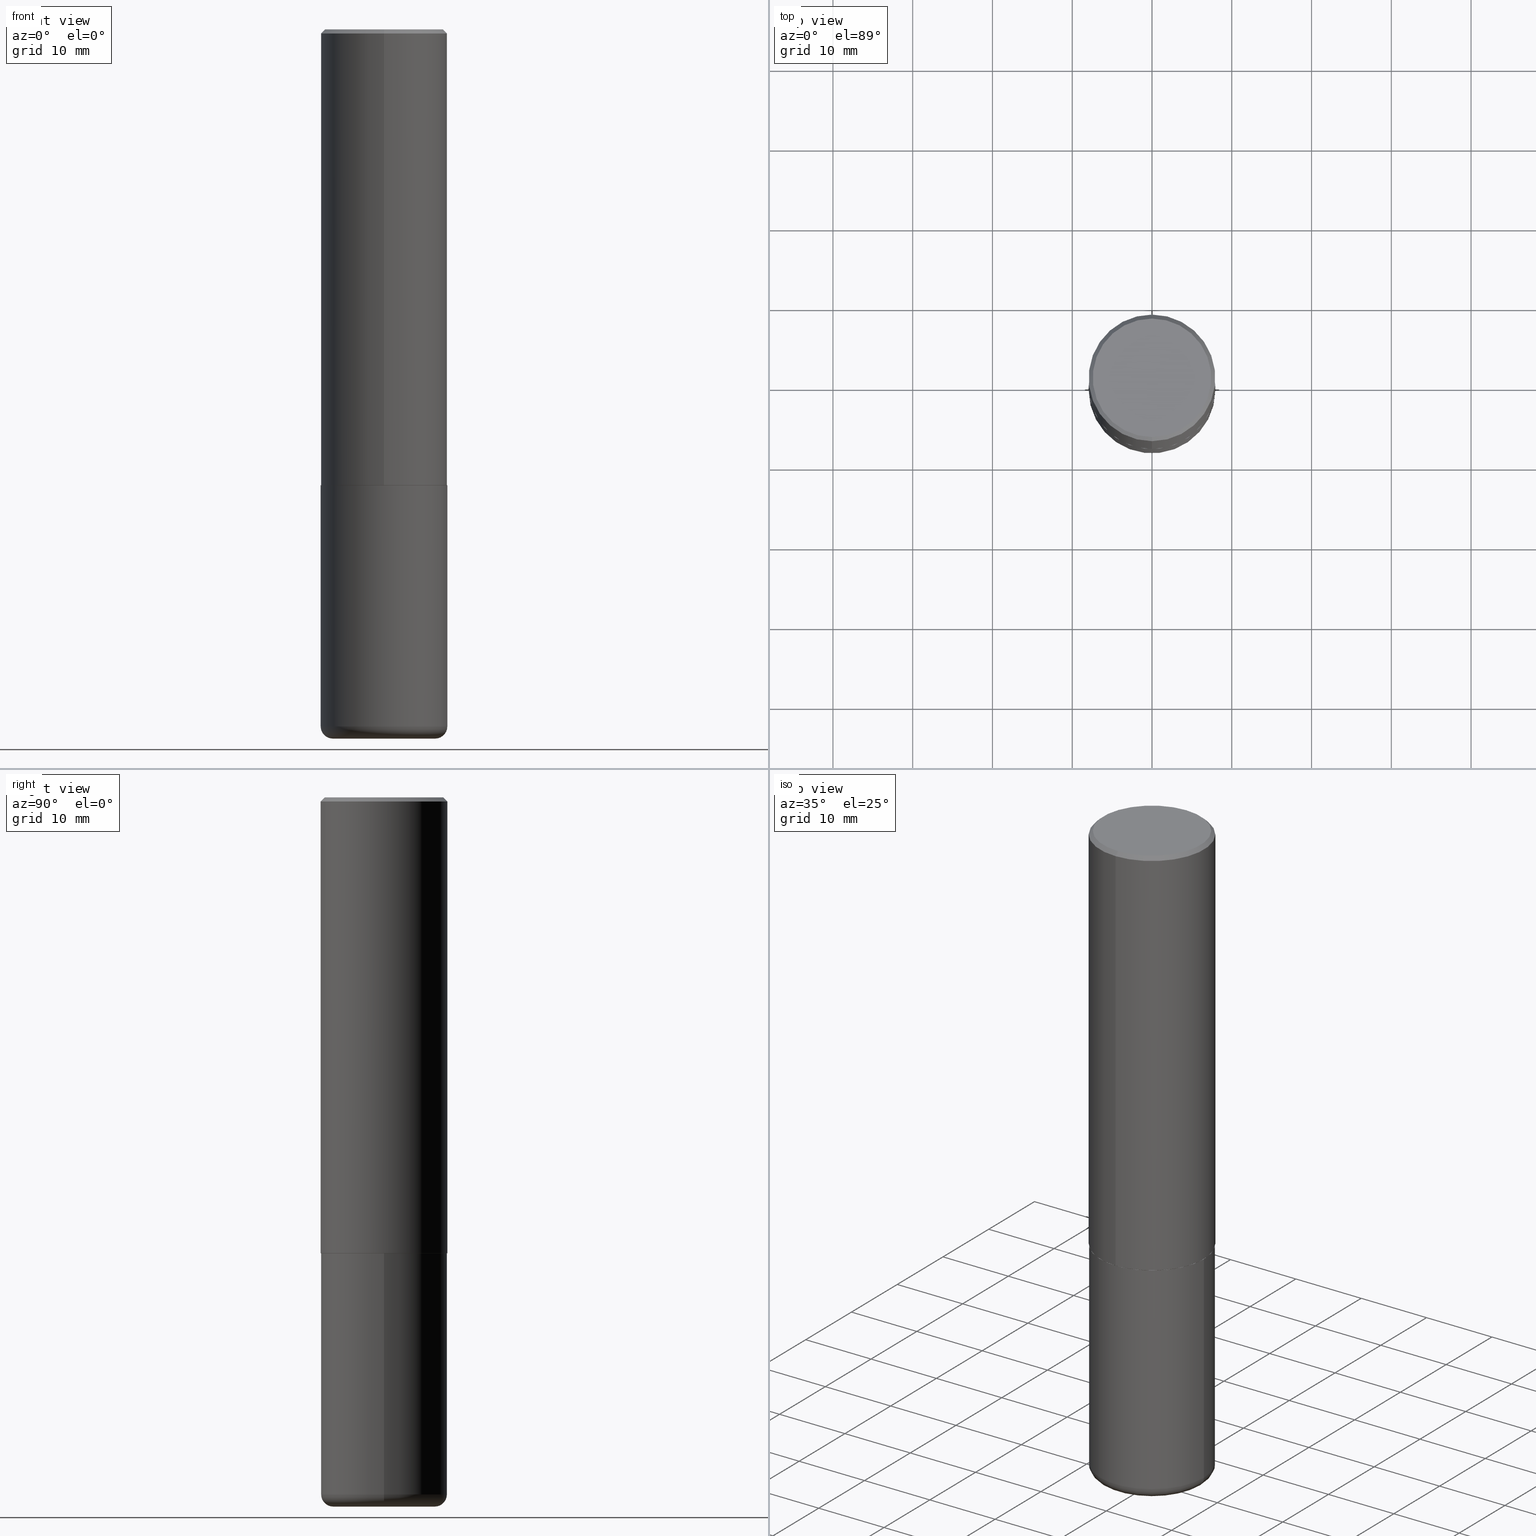
[diagram: canonical four-view strip — front | top / right | iso, engineering-drawing reading convention]
A machine part, canonical four-view strip (front | top / right | iso — engineering-drawing reading convention). The complete STEP part file that produces these views, byte-faithful:
ISO-10303-21;
HEADER;
FILE_DESCRIPTION (( 'STEP AP203' ),
    '1' );
FILE_NAME ('37205.STEP',
    '2024-03-01T21:53:56',
    ( '' ),
    ( '' ),
    'SwSTEP 2.0',
    'SolidWorks 2023',
    '' );
FILE_SCHEMA (( 'CONFIG_CONTROL_DESIGN' ));
ENDSEC;

DATA;
#1 = ORIENTED_EDGE ( 'NONE', *, *, #189, .F. ) ;
#2 = CALENDAR_DATE ( 2024, 1, 3 ) ;
#3 = AXIS2_PLACEMENT_3D ( 'NONE', #195, #126, #198 ) ;
#4 = ORIENTED_EDGE ( 'NONE', *, *, #58, .F. ) ;
#5 = VERTEX_POINT ( 'NONE', #163 ) ;
#6 = ORIENTED_EDGE ( 'NONE', *, *, #63, .F. ) ;
#7 = VERTEX_POINT ( 'NONE', #298 ) ;
#8 = PRODUCT_DEFINITION_FORMATION_WITH_SPECIFIED_SOURCE ( 'ANY', '', #170, .NOT_KNOWN. ) ;
#9 = CYLINDRICAL_SURFACE ( 'NONE', #76, 0.3125000000000000555 ) ;
#10 = EDGE_CURVE ( 'NONE', #7, #213, #218, .T. ) ;
#11 = ORIENTED_EDGE ( 'NONE', *, *, #311, .F. ) ;
#12 = CLOSED_SHELL ( 'NONE', ( #124, #322, #389, #284, #14, #96, #156, #172 ) ) ;
#13 = VECTOR ( 'NONE', #289, 39.37007874015748143 ) ;
#14 = ADVANCED_FACE ( 'NONE', ( #72 ), #178, .T. ) ;
#15 = FACE_OUTER_BOUND ( 'NONE', #177, .T. ) ;
#16 = CYLINDRICAL_SURFACE ( 'NONE', #153, 0.3125000000000000000 ) ;
#17 = DIRECTION ( 'NONE',  ( 1.000000000000000000, -6.982962677686266711E-15, 4.876176775795936353E-29 ) ) ;
#18 = SECURITY_CLASSIFICATION ( '', '', #30 ) ;
#19 = CARTESIAN_POINT ( 'NONE',  ( 0.3125000000000000000, -1.003800884917403522E-14, -2.249999999999999556 ) ) ;
#20 = CARTESIAN_POINT ( 'NONE',  ( 4.888310870337248995E-31, -6.986724321782500903E-17, -0.02000000000000006981 ) ) ;
#21 = CARTESIAN_POINT ( 'NONE',  ( 2.216893335571567797E-15, 0.3114999999999921720, -2.250000000000000888 ) ) ;
#22 = ORIENTED_EDGE ( 'NONE', *, *, #147, .F. ) ;
#23 = DIRECTION ( 'NONE',  ( -6.982962677686265922E-15, -1.000000000000000000, 3.507991003100177457E-15 ) ) ;
#24 = VERTEX_POINT ( 'NONE', #336 ) ;
#25 = DIRECTION ( 'NONE',  ( -2.445468806185136597E-29, 3.491481338843145583E-15, 1.000000000000000000 ) ) ;
#26 = DIRECTION ( 'NONE',  ( 1.000000000000000000, -6.982962677686269077E-15, 0.000000000000000000 ) ) ;
#27 = AXIS2_PLACEMENT_3D ( 'NONE', #321, #259, #23 ) ;
#28 = FACE_OUTER_BOUND ( 'NONE', #246, .T. ) ;
#29 = ORIENTED_EDGE ( 'NONE', *, *, #182, .T. ) ;
#30 = SECURITY_CLASSIFICATION_LEVEL ( 'unclassified' ) ;
#31 =( NAMED_UNIT ( * ) SI_UNIT ( $, .STERADIAN. ) SOLID_ANGLE_UNIT ( ) );
#32 = ORIENTED_EDGE ( 'NONE', *, *, #93, .T. ) ;
#33 = CIRCLE ( 'NONE', #313, 0.2924999999999997047 ) ;
#34 = DATE_AND_TIME ( #387, #345 ) ;
#35 = AXIS2_PLACEMENT_3D ( 'NONE', #297, #262, #26 ) ;
#36 = APPROVAL_ROLE ( '' ) ;
#37 = COORDINATED_UNIVERSAL_TIME_OFFSET ( 5, 0, .BEHIND. ) ;
#38 = ORIENTED_EDGE ( 'NONE', *, *, #93, .F. ) ;
#39 = DATE_AND_TIME ( #2, #48 ) ;
#40 = CARTESIAN_POINT ( 'NONE',  ( 8.559140821647976968E-29, -1.222018468595100934E-14, -3.500000000000000000 ) ) ;
#41 = ORIENTED_EDGE ( 'NONE', *, *, #248, .F. ) ;
#42 = CARTESIAN_POINT ( 'NONE',  ( 0.000000000000000000, 0.000000000000000000, 0.000000000000000000 ) ) ;
#43 = CARTESIAN_POINT ( 'NONE',  ( 8.559140821647976968E-29, -1.222018468595100934E-14, -3.500000000000000000 ) ) ;
#44 = APPROVAL_PERSON_ORGANIZATION ( #347, #358, #94 ) ;
#45 = DATE_AND_TIME ( #368, #240 ) ;
#46 = ORIENTED_EDGE ( 'NONE', *, *, #140, .F. ) ;
#47 = EDGE_CURVE ( 'NONE', #160, #142, #33, .T. ) ;
#48 = LOCAL_TIME ( 16, 53, 56.00000000000000000, #112 ) ;
#49 = DIRECTION ( 'NONE',  ( -2.444155435168616212E-29, 3.493362160891238126E-15, 1.000000000000000000 ) ) ;
#50 = LENGTH_MEASURE_WITH_UNIT ( LENGTH_MEASURE( 0.02539999999999999897 ), #285 );
#51 = DIRECTION ( 'NONE',  ( -2.444155435168616212E-29, 3.493362160891238520E-15, 1.000000000000000000 ) ) ;
#52 = DIRECTION ( 'NONE',  ( -2.445468806185136597E-29, 3.491481338843145583E-15, 1.000000000000000000 ) ) ;
#53 = APPROVAL_STATUS ( 'not_yet_approved' ) ;
#54 = FACE_OUTER_BOUND ( 'NONE', #145, .T. ) ;
#55 = ORIENTED_EDGE ( 'NONE', *, *, #370, .T. ) ;
#56 = DIRECTION ( 'NONE',  ( -1.000000000000000000, 7.105427357600997914E-15, 0.000000000000000000 ) ) ;
#57 = DIRECTION ( 'NONE',  ( -6.982962677686265133E-15, -1.000000000000000000, 3.493362160891238126E-15 ) ) ;
#58 = EDGE_CURVE ( 'NONE', #70, #309, #341, .T. ) ;
#59 = VECTOR ( 'NONE', #282, 39.37007874015748143 ) ;
#60 = EDGE_LOOP ( 'NONE', ( #6, #38 ) ) ;
#61 = MANIFOLD_SOLID_BREP ( 'Body-Move/Copy2[2]', #12 ) ;
#62 = DIRECTION ( 'NONE',  ( 0.000000000000000000, 0.000000000000000000, 1.000000000000000000 ) ) ;
#63 = EDGE_CURVE ( 'NONE', #371, #5, #148, .T. ) ;
#64 = DIRECTION ( 'NONE',  ( -6.982962677686265922E-15, -1.000000000000000000, 3.496765431890253764E-15 ) ) ;
#65 = CIRCLE ( 'NONE', #288, 0.2525000000000000022 ) ;
#66 = DATE_AND_TIME ( #103, #190 ) ;
#67 = AXIS2_PLACEMENT_3D ( 'NONE', #176, #273, #141 ) ;
#68 = PERSON_AND_ORGANIZATION_ROLE ( 'design_supplier' ) ;
#69 = CARTESIAN_POINT ( 'NONE',  ( 0.3125000000000000000, -2.182175836776958347E-15, 1.523805242436230075E-29 ) ) ;
#70 = VERTEX_POINT ( 'NONE', #365 ) ;
#71 = DATE_TIME_ROLE ( 'classification_date' ) ;
#72 = FACE_OUTER_BOUND ( 'NONE', #393, .T. ) ;
#73 = PERSON_AND_ORGANIZATION ( #401, #399 ) ;
#74 = ORIENTED_EDGE ( 'NONE', *, *, #293, .T. ) ;
#75 = AXIS2_PLACEMENT_3D ( 'NONE', #133, #127, #382 ) ;
#76 = AXIS2_PLACEMENT_3D ( 'NONE', #42, #397, #120 ) ;
#77 = DIRECTION ( 'NONE',  ( -2.444155435168616212E-29, 3.493362160891238520E-15, 1.000000000000000000 ) ) ;
#78 = PRODUCT_DEFINITION ( 'UNKNOWN', '', #8, #348 ) ;
#79 = EDGE_CURVE ( 'NONE', #142, #309, #149, .T. ) ;
#80 = APPROVAL_STATUS ( 'not_yet_approved' ) ;
#81 = CIRCLE ( 'NONE', #27, 0.3114999999999999991 ) ;
#82 = ORIENTED_EDGE ( 'NONE', *, *, #205, .F. ) ;
#83 = DIRECTION ( 'NONE',  ( -6.982962677686265922E-15, -1.000000000000000000, 3.496765431890253764E-15 ) ) ;
#84 = APPROVAL ( #80, 'UNSPECIFIED' ) ;
#85 = FACE_OUTER_BOUND ( 'NONE', #308, .T. ) ;
#86 = TOROIDAL_SURFACE ( 'NONE', #154, 0.2525000000000000022, 0.05999999999999995615 ) ;
#87 = FACE_OUTER_BOUND ( 'NONE', #60, .T. ) ;
#88 = CYLINDRICAL_SURFACE ( 'NONE', #234, 0.3125000000000000000 ) ;
#89 = DIRECTION ( 'NONE',  ( -6.982962677686265133E-15, -1.000000000000000000, 3.496765431890258103E-15 ) ) ;
#90 = CARTESIAN_POINT ( 'NONE',  ( 0.000000000000000000, 0.000000000000000000, 0.000000000000000000 ) ) ;
#91 = ORIENTED_EDGE ( 'NONE', *, *, #248, .T. ) ;
#92 = DIRECTION ( 'NONE',  ( -6.982962677686265922E-15, -1.000000000000000000, 3.493362160891238126E-15 ) ) ;
#93 = EDGE_CURVE ( 'NONE', #5, #371, #65, .T. ) ;
#94 = APPROVAL_ROLE ( '' ) ;
#95 = CARTESIAN_POINT ( 'NONE',  ( 2.213340621892766504E-15, 0.3114999999999921720, -2.250000000000000888 ) ) ;
#96 = ADVANCED_FACE ( 'NONE', ( #15 ), #300, .T. ) ;
#97 = DIRECTION ( 'NONE',  ( -2.444155435168616212E-29, 3.493362160891238520E-15, 1.000000000000000000 ) ) ;
#98 = VECTOR ( 'NONE', #404, 39.37007874015748143 ) ;
#99 = ORIENTED_EDGE ( 'NONE', *, *, #357, .F. ) ;
#100 = PLANE ( 'NONE',  #166 ) ;
#101 = ADVANCED_FACE ( 'NONE', ( #87 ), #113, .T. ) ;
#102 = PRODUCT_DEFINITION_SHAPE ( 'NONE', 'NONE',  #78 ) ;
#103 = CALENDAR_DATE ( 2024, 1, 3 ) ;
#104 = CIRCLE ( 'NONE', #188, 0.2924999999999997047 ) ;
#105 = ORIENTED_EDGE ( 'NONE', *, *, #349, .T. ) ;
#106 = DIRECTION ( 'NONE',  ( 2.444155435168616212E-29, -3.493362160891238520E-15, -1.000000000000000000 ) ) ;
#107 = ORIENTED_EDGE ( 'NONE', *, *, #301, .T. ) ;
#108 = APPROVAL_DATE_TIME ( #34, #275 ) ;
#109 = VERTEX_POINT ( 'NONE', #317 ) ;
#110 = PERSON_AND_ORGANIZATION_ROLE ( 'creator' ) ;
#111 = CARTESIAN_POINT ( 'NONE',  ( 8.412412693276869938E-29, -1.201069580562042103E-14, -3.439999999999999947 ) ) ;
#112 = COORDINATED_UNIVERSAL_TIME_OFFSET ( 5, 0, .BEHIND. ) ;
#113 = PLANE ( 'NONE',  #405 ) ;
#114 = ORIENTED_EDGE ( 'NONE', *, *, #147, .T. ) ;
#115 = CONICAL_SURFACE ( 'NONE', #233, 0.3114999999999999991, 0.7853981633975507526 ) ;
#116 = CIRCLE ( 'NONE', #355, 0.3124999999999998890 ) ;
#117 = ADVANCED_FACE ( 'NONE', ( #215 ), #16, .T. ) ;
#118 = ORIENTED_EDGE ( 'NONE', *, *, #79, .F. ) ;
#119 = DIRECTION ( 'NONE',  ( -2.445468806185136597E-29, 3.491481338843145583E-15, 1.000000000000000000 ) ) ;
#120 = DIRECTION ( 'NONE',  ( -6.982962677686266711E-15, -1.000000000000000000, 3.493362160891238520E-15 ) ) ;
#121 = AXIS2_PLACEMENT_3D ( 'NONE', #135, #306, #390 ) ;
#122 = CARTESIAN_POINT ( 'NONE',  ( 8.559140821647976968E-29, -1.222018468595100934E-14, -3.500000000000000000 ) ) ;
#123 =( NAMED_UNIT ( * ) PLANE_ANGLE_UNIT ( ) SI_UNIT ( $, .RADIAN. ) );
#124 = ADVANCED_FACE ( 'NONE', ( #54 ), #115, .T. ) ;
#125 = PLANE ( 'NONE',  #320 ) ;
#126 = DIRECTION ( 'NONE',  ( 2.444155435168616212E-29, -3.493362160891238126E-15, -1.000000000000000000 ) ) ;
#127 = DIRECTION ( 'NONE',  ( -2.445468806185136597E-29, 3.491481338843145583E-15, 1.000000000000000000 ) ) ;
#128 = DIRECTION ( 'NONE',  ( -6.982962677686266711E-15, -1.000000000000000000, 3.491481338843145583E-15 ) ) ;
#129 = AXIS2_PLACEMENT_3D ( 'NONE', #229, #62, #165 ) ;
#130 = CC_DESIGN_SECURITY_CLASSIFICATION ( #18, ( #8 ) ) ;
#131 = DIRECTION ( 'NONE',  ( 1.000000000000000000, -6.982962677686269077E-15, 0.000000000000000000 ) ) ;
#132 = CARTESIAN_POINT ( 'NONE',  ( 2.112346210000094260E-15, 0.2924999999999997047, -8.889344044185063951E-16 ) ) ;
#133 = CARTESIAN_POINT ( 'NONE',  ( 8.412412693276869938E-29, -1.201069580562042103E-14, -3.439999999999999947 ) ) ;
#134 = ORIENTED_EDGE ( 'NONE', *, *, #258, .F. ) ;
#135 = CARTESIAN_POINT ( 'NONE',  ( 0.000000000000000000, 0.000000000000000000, 0.000000000000000000 ) ) ;
#136 = ORIENTED_EDGE ( 'NONE', *, *, #253, .F. ) ;
#137 = CIRCLE ( 'NONE', #168, 0.05999999999999994227 ) ;
#138 = VERTEX_POINT ( 'NONE', #161 ) ;
#139 = DATE_AND_TIME ( #413, #270 ) ;
#140 = EDGE_CURVE ( 'NONE', #309, #386, #342, .T. ) ;
#141 = DIRECTION ( 'NONE',  ( 6.982962677686265133E-15, 1.000000000000000000, -3.496765431890258103E-15 ) ) ;
#142 = VERTEX_POINT ( 'NONE', #132 ) ;
#143 = PERSON_AND_ORGANIZATION ( #401, #399 ) ;
#144 = ORIENTED_EDGE ( 'NONE', *, *, #47, .F. ) ;
#145 = EDGE_LOOP ( 'NONE', ( #359, #91, #331, #11 ) ) ;
#146 = VERTEX_POINT ( 'NONE', #263 ) ;
#147 = EDGE_CURVE ( 'NONE', #24, #138, #210, .T. ) ;
#148 = CIRCLE ( 'NONE', #373, 0.2525000000000000022 ) ;
#149 = LINE ( 'NONE', #315, #98 ) ;
#150 = ORIENTED_EDGE ( 'NONE', *, *, #63, .T. ) ;
#151 = CIRCLE ( 'NONE', #158, 0.3125000000000002776 ) ;
#152 = CARTESIAN_POINT ( 'NONE',  ( 8.412412693276869938E-29, -1.201069580562042103E-14, -3.439999999999999947 ) ) ;
#153 = AXIS2_PLACEMENT_3D ( 'NONE', #90, #335, #17 ) ;
#154 = AXIS2_PLACEMENT_3D ( 'NONE', #111, #363, #281 ) ;
#155 = CARTESIAN_POINT ( 'NONE',  ( 5.499349729129385426E-29, -7.860064862005286079E-15, -2.249999999999999556 ) ) ;
#156 = ADVANCED_FACE ( 'NONE', ( #352 ), #100, .F. ) ;
#157 = EDGE_CURVE ( 'NONE', #5, #138, #323, .T. ) ;
#158 = AXIS2_PLACEMENT_3D ( 'NONE', #369, #252, #83 ) ;
#159 = CARTESIAN_POINT ( 'NONE',  ( 5.499349729129385426E-29, -7.860064862005286079E-15, -2.249999999999999556 ) ) ;
#160 = VERTEX_POINT ( 'NONE', #292 ) ;
#161 = CARTESIAN_POINT ( 'NONE',  ( -0.3125000000000000000, -9.790249756370107944E-15, -3.439999999999999947 ) ) ;
#162 = DIRECTION ( 'NONE',  ( 6.982962677686265133E-15, 1.000000000000000000, -3.496765431890258103E-15 ) ) ;
#163 = CARTESIAN_POINT ( 'NONE',  ( -0.2525000000000000022, -1.010815701726343156E-14, -3.500000000000000000 ) ) ;
#164 = CARTESIAN_POINT ( 'NONE',  ( 5.502304813916556222E-29, -7.855833012397076871E-15, -2.249999999999999556 ) ) ;
#165 = DIRECTION ( 'NONE',  ( 1.000000000000000000, 0.000000000000000000, 0.000000000000000000 ) ) ;
#166 = AXIS2_PLACEMENT_3D ( 'NONE', #185, #378, #92 ) ;
#167 = PRODUCT_RELATED_PRODUCT_CATEGORY ( 'detail', '', ( #170 ) ) ;
#168 = AXIS2_PLACEMENT_3D ( 'NONE', #296, #128, #407 ) ;
#169 = VECTOR ( 'NONE', #197, 39.37007874015748143 ) ;
#170 = PRODUCT ( '37205', '37205', '', ( #209 ) ) ;
#171 = CARTESIAN_POINT ( 'NONE',  ( -2.143905624303602036E-15, -0.3124999999999999445, -0.01999999999999897693 ) ) ;
#172 = ADVANCED_FACE ( 'NONE', ( #350 ), #409, .F. ) ;
#173 = DIRECTION ( 'NONE',  ( -4.851104656540959542E-15, -0.7071067811865493491, -0.7071067811865457964 ) ) ;
#174 = CC_DESIGN_PERSON_AND_ORGANIZATION_ASSIGNMENT ( #143, #316, ( #170 ) ) ;
#175 = VERTEX_POINT ( 'NONE', #19 ) ;
#176 = CARTESIAN_POINT ( 'NONE',  ( 4.888310870337248995E-31, -6.986724321782500903E-17, -0.02000000000000006981 ) ) ;
#177 = EDGE_LOOP ( 'NONE', ( #41, #29, #201, #356 ) ) ;
#178 = CYLINDRICAL_SURFACE ( 'NONE', #121, 0.3125000000000000555 ) ;
#179 = DATE_TIME_ROLE ( 'creation_date' ) ;
#180 = ORIENTED_EDGE ( 'NONE', *, *, #293, .F. ) ;
#181 = PERSON_AND_ORGANIZATION ( #401, #399 ) ;
#182 = EDGE_CURVE ( 'NONE', #213, #7, #81, .T. ) ;
#183 = ORIENTED_EDGE ( 'NONE', *, *, #205, .T. ) ;
#184 = LINE ( 'NONE', #340, #13 ) ;
#185 = CARTESIAN_POINT ( 'NONE',  ( 5.499349729129385426E-29, -7.860064862005286079E-15, -2.249999999999999556 ) ) ;
#186 = VECTOR ( 'NONE', #49, 39.37007874015748143 ) ;
#187 = DIRECTION ( 'NONE',  ( 1.000000000000000000, -6.982962677686269866E-15, 0.000000000000000000 ) ) ;
#188 = AXIS2_PLACEMENT_3D ( 'NONE', #379, #97, #57 ) ;
#189 = EDGE_CURVE ( 'NONE', #146, #175, #344, .T. ) ;
#190 = LOCAL_TIME ( 16, 53, 56.00000000000000000, #383 ) ;
#191 = DIRECTION ( 'NONE',  ( -2.445468806185136597E-29, 3.491481338843145583E-15, 1.000000000000000000 ) ) ;
#192 =( CONVERSION_BASED_UNIT ( 'INCH', #50 ) LENGTH_UNIT ( ) NAMED_UNIT ( #250 ) );
#193 = DIRECTION ( 'NONE',  ( 1.000000000000000000, -6.982962677686269866E-15, 0.000000000000000000 ) ) ;
#194 = FACE_OUTER_BOUND ( 'NONE', #236, .T. ) ;
#195 = CARTESIAN_POINT ( 'NONE',  ( 2.042516583223230567E-15, 0.2924999999999997047, -9.553714182395964653E-16 ) ) ;
#196 = AXIS2_PLACEMENT_3D ( 'NONE', #257, #286, #56 ) ;
#197 = DIRECTION ( 'NONE',  ( 5.024295867788576727E-15, 0.7071067811866224018, 0.7071067811864726327 ) ) ;
#198 = DIRECTION ( 'NONE',  ( 6.982962677686265922E-15, 1.000000000000000000, -3.493362160891238126E-15 ) ) ;
#199 = DIRECTION ( 'NONE',  ( 1.000000000000000000, -6.982962677686269077E-15, 0.000000000000000000 ) ) ;
#200 = EDGE_LOOP ( 'NONE', ( #55, #211, #82, #392 ) ) ;
#201 = ORIENTED_EDGE ( 'NONE', *, *, #311, .T. ) ;
#202 = APPROVAL_STATUS ( 'not_yet_approved' ) ;
#203 = DIRECTION ( 'NONE',  ( -2.445468806185136877E-29, 3.491481338843145188E-15, 1.000000000000000000 ) ) ;
#204 = EDGE_CURVE ( 'NONE', #138, #24, #381, .T. ) ;
#205 = EDGE_CURVE ( 'NONE', #386, #309, #116, .T. ) ;
#206 = APPROVAL_DATE_TIME ( #39, #84 ) ;
#207 = DIRECTION ( 'NONE',  ( 1.000000000000000000, -6.982962677686264344E-15, 4.883557194083112340E-29 ) ) ;
#208 = EDGE_LOOP ( 'NONE', ( #150, #272, #22, #99 ) ) ;
#209 = MECHANICAL_CONTEXT ( 'NONE', #283, 'mechanical' ) ;
#210 = CIRCLE ( 'NONE', #75, 0.3125000000000000000 ) ;
#211 = ORIENTED_EDGE ( 'NONE', *, *, #58, .T. ) ;
#212 = VECTOR ( 'NONE', #203, 39.37007874015748143 ) ;
#213 = VERTEX_POINT ( 'NONE', #21 ) ;
#214 = PERSON_AND_ORGANIZATION ( #401, #399 ) ;
#215 = FACE_OUTER_BOUND ( 'NONE', #360, .T. ) ;
#216 = CC_DESIGN_APPROVAL ( #84, ( #8 ) ) ;
#217 = CARTESIAN_POINT ( 'NONE',  ( 2.182175836776957558E-15, 0.3124999999999998335, -0.02000000000000116268 ) ) ;
#218 = CIRCLE ( 'NONE', #343, 0.3114999999999999991 ) ;
#219 = DIRECTION ( 'NONE',  ( -2.444155435168616212E-29, 3.493362160891238520E-15, 1.000000000000000000 ) ) ;
#220 = DIRECTION ( 'NONE',  ( -1.000000000000000000, 6.982962677686265922E-15, -4.876176775795935793E-29 ) ) ;
#221 = FACE_OUTER_BOUND ( 'NONE', #208, .T. ) ;
#222 = ADVANCED_BREP_SHAPE_REPRESENTATION ( '37205', ( #339, #61, #129 ), #255 ) ;
#223 = DIRECTION ( 'NONE',  ( 1.000000000000000000, -6.982962677686266711E-15, 4.876176775795936353E-29 ) ) ;
#224 = DIRECTION ( 'NONE',  ( -2.444155435168616212E-29, 3.493362160891238520E-15, 1.000000000000000000 ) ) ;
#225 = LINE ( 'NONE', #95, #169 ) ;
#226 = EDGE_CURVE ( 'NONE', #142, #160, #104, .T. ) ;
#227 = DIRECTION ( 'NONE',  ( -2.444155435168616212E-29, 3.493362160891238520E-15, 1.000000000000000000 ) ) ;
#228 = CARTESIAN_POINT ( 'NONE',  ( 8.412412693276869938E-29, -1.201069580562042103E-14, -3.439999999999999947 ) ) ;
#229 = CARTESIAN_POINT ( 'NONE',  ( 0.000000000000000000, 0.000000000000000000, 0.000000000000000000 ) ) ;
#230 = CARTESIAN_POINT ( 'NONE',  ( -0.3125000000000000000, 2.220446049250313081E-15, -1.537167215704658232E-29 ) ) ;
#231 = ADVANCED_FACE ( 'NONE', ( #194 ), #125, .F. ) ;
#232 = FACE_OUTER_BOUND ( 'NONE', #274, .T. ) ;
#233 = AXIS2_PLACEMENT_3D ( 'NONE', #159, #224, #408 ) ;
#234 = AXIS2_PLACEMENT_3D ( 'NONE', #338, #52, #223 ) ;
#235 = ORIENTED_EDGE ( 'NONE', *, *, #301, .F. ) ;
#236 = EDGE_LOOP ( 'NONE', ( #271, #245 ) ) ;
#237 = ORIENTED_EDGE ( 'NONE', *, *, #10, .F. ) ;
#238 = ORIENTED_EDGE ( 'NONE', *, *, #204, .T. ) ;
#239 = EDGE_LOOP ( 'NONE', ( #396, #391 ) ) ;
#240 = LOCAL_TIME ( 16, 53, 56.00000000000000000, #37 ) ;
#241 = CARTESIAN_POINT ( 'NONE',  ( 2.220446049250313081E-15, 0.3125000000000000555, -1.091675675278512284E-15 ) ) ;
#242 = CC_DESIGN_DATE_AND_TIME_ASSIGNMENT ( #45, #179, ( #78 ) ) ;
#243 = ORIENTED_EDGE ( 'NONE', *, *, #157, .F. ) ;
#244 = LINE ( 'NONE', #337, #59 ) ;
#245 = ORIENTED_EDGE ( 'NONE', *, *, #189, .T. ) ;
#246 = EDGE_LOOP ( 'NONE', ( #180, #327, #400, #334 ) ) ;
#247 = PERSON_AND_ORGANIZATION ( #401, #399 ) ;
#248 = EDGE_CURVE ( 'NONE', #213, #70, #225, .T. ) ;
#249 = CLOSED_SHELL ( 'NONE', ( #398, #416, #231, #117, #403, #101 ) ) ;
#250 = DIMENSIONAL_EXPONENTS ( 1.000000000000000000, 0.000000000000000000, 0.000000000000000000, 0.000000000000000000, 0.000000000000000000, 0.000000000000000000, 0.000000000000000000 ) ;
#251 = CIRCLE ( 'NONE', #35, 0.3125000000000000000 ) ;
#252 = DIRECTION ( 'NONE',  ( -2.444155435168616212E-29, 3.493362160891238520E-15, 1.000000000000000000 ) ) ;
#253 = EDGE_CURVE ( 'NONE', #175, #146, #251, .T. ) ;
#254 = CARTESIAN_POINT ( 'NONE',  ( -3.247647768543791356E-45, 4.641771003304080589E-31, 1.328740276421799924E-16 ) ) ;
#255 =( GEOMETRIC_REPRESENTATION_CONTEXT ( 3 ) GLOBAL_UNCERTAINTY_ASSIGNED_CONTEXT ( ( #351 ) ) GLOBAL_UNIT_ASSIGNED_CONTEXT ( ( #192, #123, #31 ) ) REPRESENTATION_CONTEXT ( 'NONE', 'WORKASPACE' ) );
#256 = DIRECTION ( 'NONE',  ( 2.438088387897960049E-29, -3.491481338843145188E-15, -1.000000000000000000 ) ) ;
#257 = CARTESIAN_POINT ( 'NONE',  ( -0.2525000000000000022, -1.021657539782616686E-14, -3.439999999999999947 ) ) ;
#258 = EDGE_CURVE ( 'NONE', #24, #175, #329, .T. ) ;
#259 = DIRECTION ( 'NONE',  ( -2.444155435168616212E-29, 3.493362160891238520E-15, 1.000000000000000000 ) ) ;
#260 = AXIS2_PLACEMENT_3D ( 'NONE', #155, #77, #287 ) ;
#261 = CIRCLE ( 'NONE', #374, 0.3125000000000002776 ) ;
#262 = DIRECTION ( 'NONE',  ( -2.445468806185136597E-29, 3.491481338843145583E-15, 1.000000000000000000 ) ) ;
#263 = CARTESIAN_POINT ( 'NONE',  ( -0.3125000000000000000, -7.712818359758435078E-15, -2.249999999999999556 ) ) ;
#264 = APPROVAL_ROLE ( '' ) ;
#265 = DIRECTION ( 'NONE',  ( -2.444155435168616212E-29, 3.493362160891238520E-15, 1.000000000000000000 ) ) ;
#266 = EDGE_LOOP ( 'NONE', ( #237, #280 ) ) ;
#267 = PERSON_AND_ORGANIZATION ( #401, #399 ) ;
#268 = CC_DESIGN_PERSON_AND_ORGANIZATION_ASSIGNMENT ( #267, #68, ( #8 ) ) ;
#269 = VECTOR ( 'NONE', #173, 39.37007874015748143 ) ;
#270 = LOCAL_TIME ( 16, 53, 56.00000000000000000, #305 ) ;
#271 = ORIENTED_EDGE ( 'NONE', *, *, #253, .T. ) ;
#272 = ORIENTED_EDGE ( 'NONE', *, *, #157, .T. ) ;
#273 = DIRECTION ( 'NONE',  ( 2.444155435168616212E-29, -3.493362160891238520E-15, -1.000000000000000000 ) ) ;
#274 = EDGE_LOOP ( 'NONE', ( #144, #74, #183, #118 ) ) ;
#275 = APPROVAL ( #202, 'UNSPECIFIED' ) ;
#276 = ORIENTED_EDGE ( 'NONE', *, *, #357, .T. ) ;
#277 = COORDINATED_UNIVERSAL_TIME_OFFSET ( 5, 0, .BEHIND. ) ;
#278 = CONICAL_SURFACE ( 'NONE', #412, 0.3124999999999998890, 0.7853981633974473908 ) ;
#279 = APPROVAL_PERSON_ORGANIZATION ( #181, #275, #264 ) ;
#280 = ORIENTED_EDGE ( 'NONE', *, *, #182, .F. ) ;
#281 = DIRECTION ( 'NONE',  ( 1.000000000000000000, -6.982962677686264344E-15, 4.883557194083112340E-29 ) ) ;
#282 = DIRECTION ( 'NONE',  ( -4.937700262165053702E-15, -0.7071067811866175168, 0.7071067811864775177 ) ) ;
#283 = APPLICATION_CONTEXT ( 'configuration controlled 3d designs of mechanical parts and assemblies' ) ;
#284 = ADVANCED_FACE ( 'NONE', ( #28 ), #394, .T. ) ;
#285 =( LENGTH_UNIT ( ) NAMED_UNIT ( * ) SI_UNIT ( $, .METRE. ) );
#286 = DIRECTION ( 'NONE',  ( 7.105427357601001859E-15, 1.000000000000000000, -3.491481338843145583E-15 ) ) ;
#287 = DIRECTION ( 'NONE',  ( -6.982962677686265922E-15, -1.000000000000000000, 3.507991003100177457E-15 ) ) ;
#288 = AXIS2_PLACEMENT_3D ( 'NONE', #122, #319, #187 ) ;
#289 = DIRECTION ( 'NONE',  ( -2.444155435168616212E-29, 3.493362160891238126E-15, 1.000000000000000000 ) ) ;
#290 = CC_DESIGN_APPROVAL ( #358, ( #78 ) ) ;
#291 = CARTESIAN_POINT ( 'NONE',  ( 4.888310870337248995E-31, -6.986724321782500903E-17, -0.02000000000000006981 ) ) ;
#292 = CARTESIAN_POINT ( 'NONE',  ( -2.075300644325886310E-15, -0.2924999999999997047, 1.154682459702866479E-15 ) ) ;
#293 = EDGE_CURVE ( 'NONE', #160, #386, #361, .T. ) ;
#294 = FACE_OUTER_BOUND ( 'NONE', #395, .T. ) ;
#295 = CC_DESIGN_PERSON_AND_ORGANIZATION_ASSIGNMENT ( #73, #333, ( #78 ) ) ;
#296 = CARTESIAN_POINT ( 'NONE',  ( 0.2525000000000000022, -1.377389388173620432E-14, -3.439999999999999947 ) ) ;
#297 = CARTESIAN_POINT ( 'NONE',  ( 5.502304813916556222E-29, -7.855833012397076871E-15, -2.249999999999999556 ) ) ;
#298 = CARTESIAN_POINT ( 'NONE',  ( -2.175192874099216718E-15, -0.3115000000000078817, -2.249999999999998668 ) ) ;
#299 = DIRECTION ( 'NONE',  ( -2.445468806185136597E-29, 3.491481338843145583E-15, 1.000000000000000000 ) ) ;
#300 = CONICAL_SURFACE ( 'NONE', #260, 0.3114999999999999991, 0.7853981633975507526 ) ;
#301 = EDGE_CURVE ( 'NONE', #138, #146, #304, .T. ) ;
#302 = CC_DESIGN_APPROVAL ( #275, ( #18 ) ) ;
#303 = DIRECTION ( 'NONE',  ( -6.982962677686265133E-15, -1.000000000000000000, 3.496765431890258103E-15 ) ) ;
#304 = LINE ( 'NONE', #230, #406 ) ;
#305 = COORDINATED_UNIVERSAL_TIME_OFFSET ( 5, 0, .BEHIND. ) ;
#306 = DIRECTION ( 'NONE',  ( -2.444155435168616212E-29, 3.493362160891238520E-15, 1.000000000000000000 ) ) ;
#307 = CC_DESIGN_DATE_AND_TIME_ASSIGNMENT ( #139, #71, ( #18 ) ) ;
#308 = EDGE_LOOP ( 'NONE', ( #114, #107, #136, #134 ) ) ;
#309 = VERTEX_POINT ( 'NONE', #217 ) ;
#310 = CC_DESIGN_PERSON_AND_ORGANIZATION_ASSIGNMENT ( #328, #110, ( #8 ) ) ;
#311 = EDGE_CURVE ( 'NONE', #7, #109, #244, .T. ) ;
#312 = TOROIDAL_SURFACE ( 'NONE', #332, 0.2525000000000000022, 0.05999999999999995615 ) ;
#313 = AXIS2_PLACEMENT_3D ( 'NONE', #254, #51, #402 ) ;
#314 = AXIS2_PLACEMENT_3D ( 'NONE', #164, #299, #131 ) ;
#315 = CARTESIAN_POINT ( 'NONE',  ( 2.182175836776957558E-15, 0.3124999999999998335, -0.02000000000000116268 ) ) ;
#316 = PERSON_AND_ORGANIZATION_ROLE ( 'design_owner' ) ;
#317 = CARTESIAN_POINT ( 'NONE',  ( -2.182175836776905099E-15, -0.3125000000000081601, -2.248999999999998778 ) ) ;
#318 = APPLICATION_PROTOCOL_DEFINITION ( 'international standard', 'config_control_design', 1994, #375 ) ;
#319 = DIRECTION ( 'NONE',  ( -2.445468806185136597E-29, 3.491481338843145583E-15, 1.000000000000000000 ) ) ;
#320 = AXIS2_PLACEMENT_3D ( 'NONE', #353, #256, #377 ) ;
#321 = CARTESIAN_POINT ( 'NONE',  ( 5.499349729129385426E-29, -7.860064862005286079E-15, -2.249999999999999556 ) ) ;
#322 = ADVANCED_FACE ( 'NONE', ( #366 ), #9, .T. ) ;
#323 = CIRCLE ( 'NONE', #196, 0.05999999999999994227 ) ;
#324 = SHAPE_DEFINITION_REPRESENTATION ( #102, #222 ) ;
#325 = AXIS2_PLACEMENT_3D ( 'NONE', #228, #119, #199 ) ;
#326 = ORIENTED_EDGE ( 'NONE', *, *, #258, .T. ) ;
#327 = ORIENTED_EDGE ( 'NONE', *, *, #226, .F. ) ;
#328 = PERSON_AND_ORGANIZATION ( #401, #399 ) ;
#329 = LINE ( 'NONE', #69, #212 ) ;
#330 = EDGE_CURVE ( 'NONE', #70, #109, #151, .T. ) ;
#331 = ORIENTED_EDGE ( 'NONE', *, *, #370, .F. ) ;
#332 = AXIS2_PLACEMENT_3D ( 'NONE', #152, #25, #207 ) ;
#333 = PERSON_AND_ORGANIZATION_ROLE ( 'creator' ) ;
#334 = ORIENTED_EDGE ( 'NONE', *, *, #140, .T. ) ;
#335 = DIRECTION ( 'NONE',  ( -2.445468806185136597E-29, 3.491481338843145583E-15, 1.000000000000000000 ) ) ;
#336 = CARTESIAN_POINT ( 'NONE',  ( 0.3125000000000000000, -1.419287164239737937E-14, -3.439999999999999947 ) ) ;
#337 = CARTESIAN_POINT ( 'NONE',  ( -2.175192874099216718E-15, -0.3115000000000078817, -2.249999999999998668 ) ) ;
#338 = CARTESIAN_POINT ( 'NONE',  ( 0.000000000000000000, 0.000000000000000000, 0.000000000000000000 ) ) ;
#339 = MANIFOLD_SOLID_BREP ( 'Body-Move/Copy2[1]', #249 ) ;
#340 = CARTESIAN_POINT ( 'NONE',  ( -2.182175836776958741E-15, -0.3125000000000000555, 1.091675675278512284E-15 ) ) ;
#341 = LINE ( 'NONE', #241, #186 ) ;
#342 = CIRCLE ( 'NONE', #380, 0.3124999999999998890 ) ;
#343 = AXIS2_PLACEMENT_3D ( 'NONE', #411, #265, #418 ) ;
#344 = CIRCLE ( 'NONE', #314, 0.3125000000000000000 ) ;
#345 = LOCAL_TIME ( 16, 53, 56.00000000000000000, #277 ) ;
#346 = DIRECTION ( 'NONE',  ( 2.438088387897960049E-29, -3.491481338843145188E-15, -1.000000000000000000 ) ) ;
#347 = PERSON_AND_ORGANIZATION ( #401, #399 ) ;
#348 = DESIGN_CONTEXT ( 'detailed design', #375, 'design' ) ;
#349 = EDGE_CURVE ( 'NONE', #109, #386, #184, .T. ) ;
#350 = FACE_OUTER_BOUND ( 'NONE', #239, .T. ) ;
#351 = UNCERTAINTY_MEASURE_WITH_UNIT (LENGTH_MEASURE( 1.000000000000000082E-05 ), #192, 'distance_accuracy_value', 'NONE');
#352 = FACE_OUTER_BOUND ( 'NONE', #266, .T. ) ;
#353 = CARTESIAN_POINT ( 'NONE',  ( 5.502304813916556222E-29, -7.855833012397076871E-15, -2.249999999999999556 ) ) ;
#354 = PERSON_AND_ORGANIZATION_ROLE ( 'classification_officer' ) ;
#355 = AXIS2_PLACEMENT_3D ( 'NONE', #291, #376, #89 ) ;
#356 = ORIENTED_EDGE ( 'NONE', *, *, #330, .F. ) ;
#357 = EDGE_CURVE ( 'NONE', #371, #24, #137, .T. ) ;
#358 = APPROVAL ( #53, 'UNSPECIFIED' ) ;
#359 = ORIENTED_EDGE ( 'NONE', *, *, #10, .T. ) ;
#360 = EDGE_LOOP ( 'NONE', ( #235, #238, #326, #1 ) ) ;
#361 = LINE ( 'NONE', #171, #269 ) ;
#362 = ORIENTED_EDGE ( 'NONE', *, *, #330, .T. ) ;
#363 = DIRECTION ( 'NONE',  ( -2.445468806185136597E-29, 3.491481338843145583E-15, 1.000000000000000000 ) ) ;
#364 = APPROVAL_DATE_TIME ( #66, #358 ) ;
#365 = CARTESIAN_POINT ( 'NONE',  ( 2.220446049250341480E-15, 0.3124999999999924505, -2.249000000000000998 ) ) ;
#366 = FACE_OUTER_BOUND ( 'NONE', #200, .T. ) ;
#367 = ORIENTED_EDGE ( 'NONE', *, *, #204, .F. ) ;
#368 = CALENDAR_DATE ( 2024, 1, 3 ) ;
#369 = CARTESIAN_POINT ( 'NONE',  ( 5.496905573694216767E-29, -7.856571499844395127E-15, -2.248999999999999666 ) ) ;
#370 = EDGE_CURVE ( 'NONE', #109, #70, #261, .T. ) ;
#371 = VERTEX_POINT ( 'NONE', #384 ) ;
#372 = CARTESIAN_POINT ( 'NONE',  ( 5.496905573694216767E-29, -7.856571499844395127E-15, -2.248999999999999666 ) ) ;
#373 = AXIS2_PLACEMENT_3D ( 'NONE', #43, #191, #193 ) ;
#374 = AXIS2_PLACEMENT_3D ( 'NONE', #372, #219, #64 ) ;
#375 = APPLICATION_CONTEXT ( 'configuration controlled 3d designs of mechanical parts and assemblies' ) ;
#376 = DIRECTION ( 'NONE',  ( -2.444155435168616212E-29, 3.493362160891238520E-15, 1.000000000000000000 ) ) ;
#377 = DIRECTION ( 'NONE',  ( -1.000000000000000000, 6.982962677686265922E-15, -4.876176775795935793E-29 ) ) ;
#378 = DIRECTION ( 'NONE',  ( -2.444155435168616212E-29, 3.493362160891238126E-15, 1.000000000000000000 ) ) ;
#379 = CARTESIAN_POINT ( 'NONE',  ( -3.247647768543791356E-45, 4.641771003304080589E-31, 1.328740276421799924E-16 ) ) ;
#380 = AXIS2_PLACEMENT_3D ( 'NONE', #414, #227, #303 ) ;
#381 = CIRCLE ( 'NONE', #325, 0.3125000000000000000 ) ;
#382 = DIRECTION ( 'NONE',  ( 1.000000000000000000, -6.982962677686269077E-15, 0.000000000000000000 ) ) ;
#383 = COORDINATED_UNIVERSAL_TIME_OFFSET ( 5, 0, .BEHIND. ) ;
#384 = CARTESIAN_POINT ( 'NONE',  ( 0.2525000000000000022, -1.398338276206679106E-14, -3.500000000000000000 ) ) ;
#385 = DIRECTION ( 'NONE',  ( -2.445468806185136877E-29, 3.491481338843145188E-15, 1.000000000000000000 ) ) ;
#386 = VERTEX_POINT ( 'NONE', #417 ) ;
#387 = CALENDAR_DATE ( 2024, 1, 3 ) ;
#388 = APPROVAL_PERSON_ORGANIZATION ( #247, #84, #36 ) ;
#389 = ADVANCED_FACE ( 'NONE', ( #232 ), #278, .T. ) ;
#390 = DIRECTION ( 'NONE',  ( -6.982962677686266711E-15, -1.000000000000000000, 3.493362160891238520E-15 ) ) ;
#391 = ORIENTED_EDGE ( 'NONE', *, *, #47, .T. ) ;
#392 = ORIENTED_EDGE ( 'NONE', *, *, #349, .F. ) ;
#393 = EDGE_LOOP ( 'NONE', ( #4, #362, #105, #46 ) ) ;
#394 = CONICAL_SURFACE ( 'NONE', #67, 0.3124999999999998890, 0.7853981633974473908 ) ;
#395 = EDGE_LOOP ( 'NONE', ( #243, #32, #276, #367 ) ) ;
#396 = ORIENTED_EDGE ( 'NONE', *, *, #226, .T. ) ;
#397 = DIRECTION ( 'NONE',  ( -2.444155435168616212E-29, 3.493362160891238520E-15, 1.000000000000000000 ) ) ;
#398 = ADVANCED_FACE ( 'NONE', ( #85 ), #88, .T. ) ;
#399 = ORGANIZATION ( 'UNSPECIFIED', 'UNSPECIFIED', '' ) ;
#400 = ORIENTED_EDGE ( 'NONE', *, *, #79, .T. ) ;
#401 = PERSON ( 'UNSPECIFIED', 'UNSPECIFIED', 'UNSPECIFIED', ('UNSPECIFIED'), ('UNSPECIFIED'), ('UNSPECIFIED') ) ;
#402 = DIRECTION ( 'NONE',  ( -6.982962677686265133E-15, -1.000000000000000000, 3.493362160891238126E-15 ) ) ;
#403 = ADVANCED_FACE ( 'NONE', ( #294 ), #312, .T. ) ;
#404 = DIRECTION ( 'NONE',  ( 4.937700262164543309E-15, 0.7071067811865444641, -0.7071067811865506814 ) ) ;
#405 = AXIS2_PLACEMENT_3D ( 'NONE', #40, #346, #220 ) ;
#406 = VECTOR ( 'NONE', #385, 39.37007874015748143 ) ;
#407 = DIRECTION ( 'NONE',  ( 1.000000000000000000, -6.982962677686274599E-15, 0.000000000000000000 ) ) ;
#408 = DIRECTION ( 'NONE',  ( -6.982962677686265922E-15, -1.000000000000000000, 3.507991003100177457E-15 ) ) ;
#409 = PLANE ( 'NONE',  #3 ) ;
#410 = CC_DESIGN_PERSON_AND_ORGANIZATION_ASSIGNMENT ( #214, #354, ( #18 ) ) ;
#411 = CARTESIAN_POINT ( 'NONE',  ( 5.499349729129385426E-29, -7.860064862005286079E-15, -2.249999999999999556 ) ) ;
#412 = AXIS2_PLACEMENT_3D ( 'NONE', #20, #106, #162 ) ;
#413 = CALENDAR_DATE ( 2024, 1, 3 ) ;
#414 = CARTESIAN_POINT ( 'NONE',  ( 4.888310870337248995E-31, -6.986724321782500903E-17, -0.02000000000000006981 ) ) ;
#415 = APPLICATION_PROTOCOL_DEFINITION ( 'international standard', 'config_control_design', 1994, #283 ) ;
#416 = ADVANCED_FACE ( 'NONE', ( #221 ), #86, .T. ) ;
#417 = CARTESIAN_POINT ( 'NONE',  ( -2.143905624303602036E-15, -0.3124999999999999445, -0.01999999999999897693 ) ) ;
#418 = DIRECTION ( 'NONE',  ( -6.982962677686265922E-15, -1.000000000000000000, 3.507991003100177457E-15 ) ) ;
ENDSEC;
END-ISO-10303-21;
